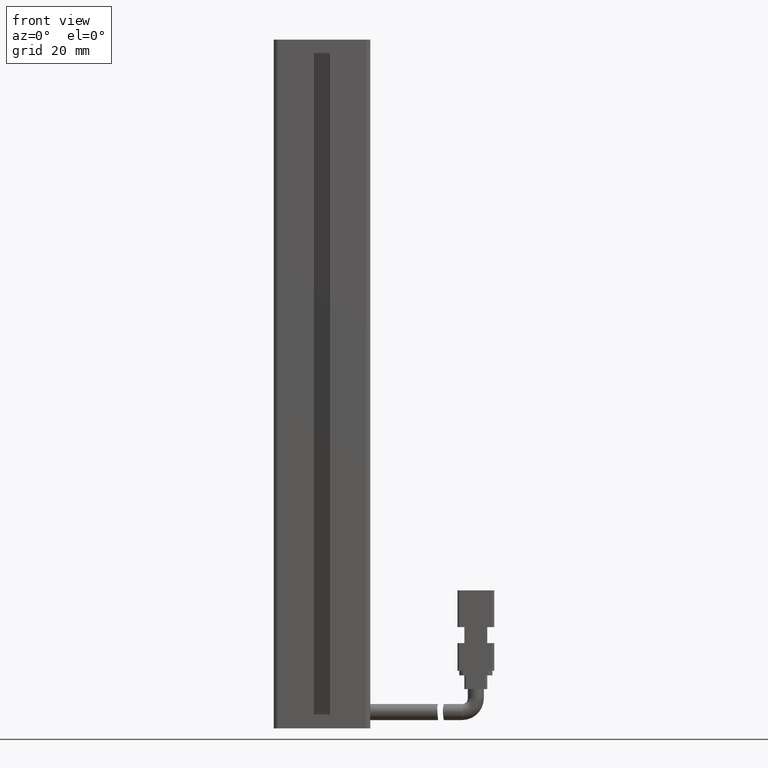
[diagram: clean part render]
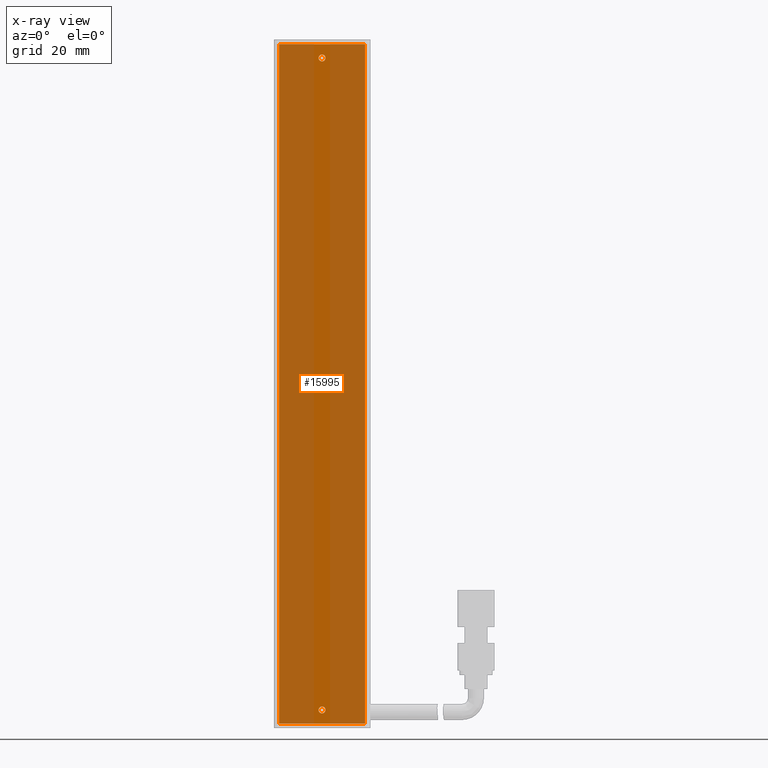
[diagram: x-ray — body ghosted, one internal face saturated and labeled with its STEP entity id]
A machine part, front view, then the same camera in x-ray: the body is ghosted and one INTERNAL B-rep face — a face not visible from any outside direction — is saturated and labeled: STEP entity #15995.
In plain terms, the highlighted planar face has unit normal (-0, 1, 0).
Its self-contained STEP definition (entity closure, byte-faithful):
#228 = FACE_OUTER_BOUND ( 'NONE', #36936, .T. ) ;
#995 = EDGE_CURVE ( 'NONE', #36541, #6298, #14338, .T. ) ;
#1616 = DIRECTION ( 'NONE',  ( -0.0000000000000000000, -1.000000000000000000, -0.0000000000000000000 ) ) ;
#3138 = ORIENTED_EDGE ( 'NONE', *, *, #30434, .F. ) ;
#3421 = CIRCLE ( 'NONE', #38729, 0.7500000000000006700 ) ;
#4327 = ORIENTED_EDGE ( 'NONE', *, *, #5238, .F. ) ;
#4629 = DIRECTION ( 'NONE',  ( 0.0000000000000000000, 0.0000000000000000000, 1.000000000000000000 ) ) ;
#5187 = CIRCLE ( 'NONE', #31514, 0.7500000000000006700 ) ;
#5238 = EDGE_CURVE ( 'NONE', #33094, #12581, #3421, .T. ) ;
#5307 = CARTESIAN_POINT ( 'NONE',  ( 50.27537974683542600, 32.09073232304837100, -41.00000000000000700 ) ) ;
#5782 = VECTOR ( 'NONE', #30788, 1000.000000000000000 ) ;
#5842 = CARTESIAN_POINT ( 'NONE',  ( 50.27537974683542600, 32.09073232304837100, -41.00000000000000700 ) ) ;
#6298 = VERTEX_POINT ( 'NONE', #19976 ) ;
#6334 = AXIS2_PLACEMENT_3D ( 'NONE', #13590, #33605, #10599 ) ;
#6569 = LINE ( 'NONE', #20915, #39687 ) ;
#8501 = CARTESIAN_POINT ( 'NONE',  ( 50.27537974683540500, 32.09073232304837100, -189.0000000000000000 ) ) ;
#10597 = VECTOR ( 'NONE', #26342, 1000.000000000000000 ) ;
#10599 = DIRECTION ( 'NONE',  ( 0.0000000000000000000, 0.0000000000000000000, 1.000000000000000000 ) ) ;
#10609 = CARTESIAN_POINT ( 'NONE',  ( 40.92537974683541800, 32.09073232304837100, -44.00000000000001400 ) ) ;
#11416 = LINE ( 'NONE', #20733, #5782 ) ;
#12581 = VERTEX_POINT ( 'NONE', #37340 ) ;
#12983 = CIRCLE ( 'NONE', #6334, 0.7500000000000006700 ) ;
#13357 = CARTESIAN_POINT ( 'NONE',  ( 40.92537974683541800, 32.09073232304837100, -43.25000000000001400 ) ) ;
#13452 = ORIENTED_EDGE ( 'NONE', *, *, #13807, .F. ) ;
#13590 = CARTESIAN_POINT ( 'NONE',  ( 40.92537974683541100, 32.09073232304837100, -186.0000000000000000 ) ) ;
#13807 = EDGE_CURVE ( 'NONE', #22604, #36541, #22773, .T. ) ;
#14338 = LINE ( 'NONE', #5307, #25451 ) ;
#14482 = FACE_BOUND ( 'NONE', #36034, .T. ) ;
#15529 = DIRECTION ( 'NONE',  ( -1.000000000000000000, -0.0000000000000000000, 1.548860246407863500E-017 ) ) ;
#15625 = DIRECTION ( 'NONE',  ( -0.0000000000000000000, -1.000000000000000000, -0.0000000000000000000 ) ) ;
#15767 = CARTESIAN_POINT ( 'NONE',  ( 40.92537974683541800, 32.09073232304837100, -44.00000000000001400 ) ) ;
#15788 = EDGE_CURVE ( 'NONE', #12581, #33094, #12983, .T. ) ;
#15995 = ADVANCED_FACE ( 'NONE', ( #228, #24598, #14482 ), #40635, .F. ) ;
#17561 = CARTESIAN_POINT ( 'NONE',  ( 40.92537974683541100, 32.09073232304837100, -186.0000000000000000 ) ) ;
#18653 = DIRECTION ( 'NONE',  ( 1.548860246407863500E-017, 0.0000000000000000000, 1.000000000000000000 ) ) ;
#18738 = CARTESIAN_POINT ( 'NONE',  ( 31.57537974683542000, 32.09073232304837100, -41.00000000000000700 ) ) ;
#19693 = CARTESIAN_POINT ( 'NONE',  ( 31.57537974683541300, 32.09073232304837100, -41.00000000000000700 ) ) ;
#19787 = CIRCLE ( 'NONE', #33805, 0.7500000000000006700 ) ;
#19976 = CARTESIAN_POINT ( 'NONE',  ( 50.27537974683542600, 32.09073232304837100, -41.00000000000000700 ) ) ;
#20044 = CARTESIAN_POINT ( 'NONE',  ( 40.92537974683541800, 32.09073232304837100, -44.75000000000001400 ) ) ;
#20378 = DIRECTION ( 'NONE',  ( 0.0000000000000000000, 0.0000000000000000000, 1.000000000000000000 ) ) ;
#20733 = CARTESIAN_POINT ( 'NONE',  ( 50.27537974683542600, 32.09073232304837100, -41.00000000000000700 ) ) ;
#20779 = AXIS2_PLACEMENT_3D ( 'NONE', #5842, #28148, #18653 ) ;
#20798 = EDGE_LOOP ( 'NONE', ( #3138, #26341 ) ) ;
#20915 = CARTESIAN_POINT ( 'NONE',  ( 50.27537974683541900, 32.09073232304837100, -189.0000000000000000 ) ) ;
#22604 = VERTEX_POINT ( 'NONE', #30111 ) ;
#22773 = LINE ( 'NONE', #19693, #10597 ) ;
#23628 = EDGE_CURVE ( 'NONE', #34904, #22604, #6569, .T. ) ;
#24598 = FACE_BOUND ( 'NONE', #20798, .T. ) ;
#25320 = DIRECTION ( 'NONE',  ( 1.000000000000000000, 0.0000000000000000000, -1.548860246407863500E-017 ) ) ;
#25451 = VECTOR ( 'NONE', #25320, 1000.000000000000000 ) ;
#25534 = DIRECTION ( 'NONE',  ( 0.0000000000000000000, 0.0000000000000000000, 1.000000000000000000 ) ) ;
#26341 = ORIENTED_EDGE ( 'NONE', *, *, #29771, .F. ) ;
#26342 = DIRECTION ( 'NONE',  ( 1.548860246407863500E-017, 0.0000000000000000000, 1.000000000000000000 ) ) ;
#26606 = CARTESIAN_POINT ( 'NONE',  ( 40.92537974683541100, 32.09073232304837100, -185.2500000000000000 ) ) ;
#28148 = DIRECTION ( 'NONE',  ( -0.0000000000000000000, 1.000000000000000000, 0.0000000000000000000 ) ) ;
#29771 = EDGE_CURVE ( 'NONE', #33687, #37762, #5187, .T. ) ;
#30111 = CARTESIAN_POINT ( 'NONE',  ( 31.57537974683540600, 32.09073232304837100, -189.0000000000000000 ) ) ;
#30169 = DIRECTION ( 'NONE',  ( -0.0000000000000000000, -1.000000000000000000, -0.0000000000000000000 ) ) ;
#30434 = EDGE_CURVE ( 'NONE', #37762, #33687, #19787, .T. ) ;
#30788 = DIRECTION ( 'NONE',  ( -1.548860246407863500E-017, -0.0000000000000000000, -1.000000000000000000 ) ) ;
#31514 = AXIS2_PLACEMENT_3D ( 'NONE', #15767, #15625, #25534 ) ;
#33094 = VERTEX_POINT ( 'NONE', #26606 ) ;
#33605 = DIRECTION ( 'NONE',  ( -0.0000000000000000000, -1.000000000000000000, -0.0000000000000000000 ) ) ;
#33687 = VERTEX_POINT ( 'NONE', #20044 ) ;
#33805 = AXIS2_PLACEMENT_3D ( 'NONE', #10609, #30169, #20378 ) ;
#34904 = VERTEX_POINT ( 'NONE', #8501 ) ;
#35752 = ORIENTED_EDGE ( 'NONE', *, *, #995, .F. ) ;
#36034 = EDGE_LOOP ( 'NONE', ( #4327, #41989 ) ) ;
#36541 = VERTEX_POINT ( 'NONE', #18738 ) ;
#36936 = EDGE_LOOP ( 'NONE', ( #13452, #39809, #39407, #35752 ) ) ;
#37340 = CARTESIAN_POINT ( 'NONE',  ( 40.92537974683541100, 32.09073232304837100, -186.7500000000000000 ) ) ;
#37762 = VERTEX_POINT ( 'NONE', #13357 ) ;
#38729 = AXIS2_PLACEMENT_3D ( 'NONE', #17561, #1616, #4629 ) ;
#39407 = ORIENTED_EDGE ( 'NONE', *, *, #39855, .F. ) ;
#39687 = VECTOR ( 'NONE', #15529, 1000.000000000000000 ) ;
#39809 = ORIENTED_EDGE ( 'NONE', *, *, #23628, .F. ) ;
#39855 = EDGE_CURVE ( 'NONE', #6298, #34904, #11416, .T. ) ;
#40635 = PLANE ( 'NONE',  #20779 ) ;
#41989 = ORIENTED_EDGE ( 'NONE', *, *, #15788, .F. ) ;